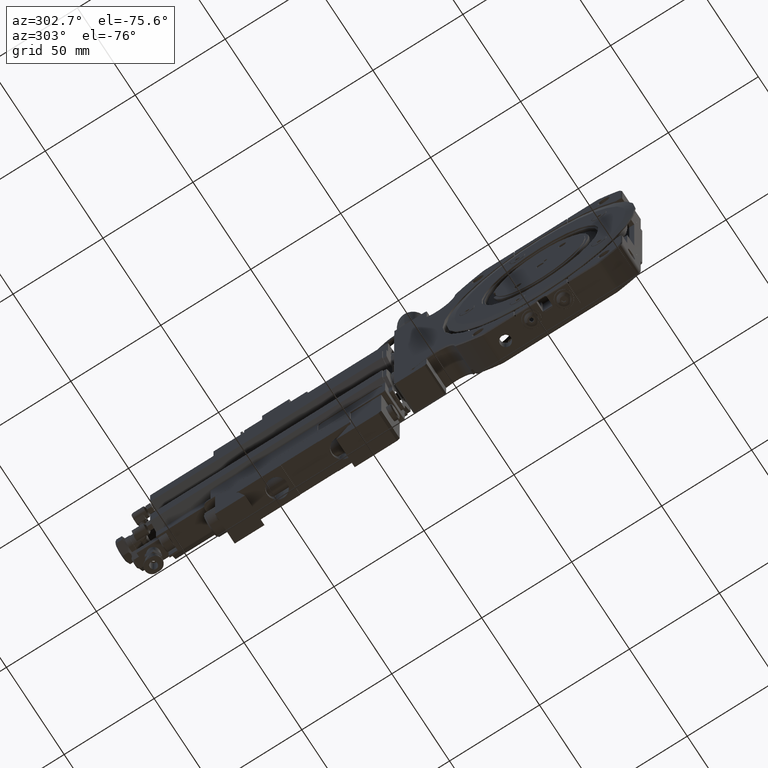
[diagram: clean part render]
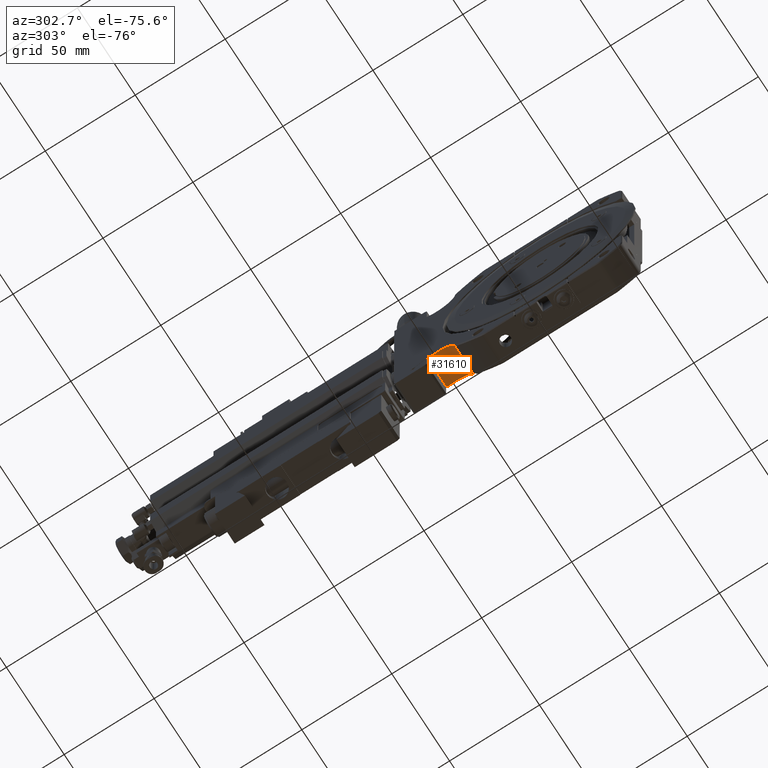
[diagram: same view with one face highlighted and labeled with its STEP entity id]
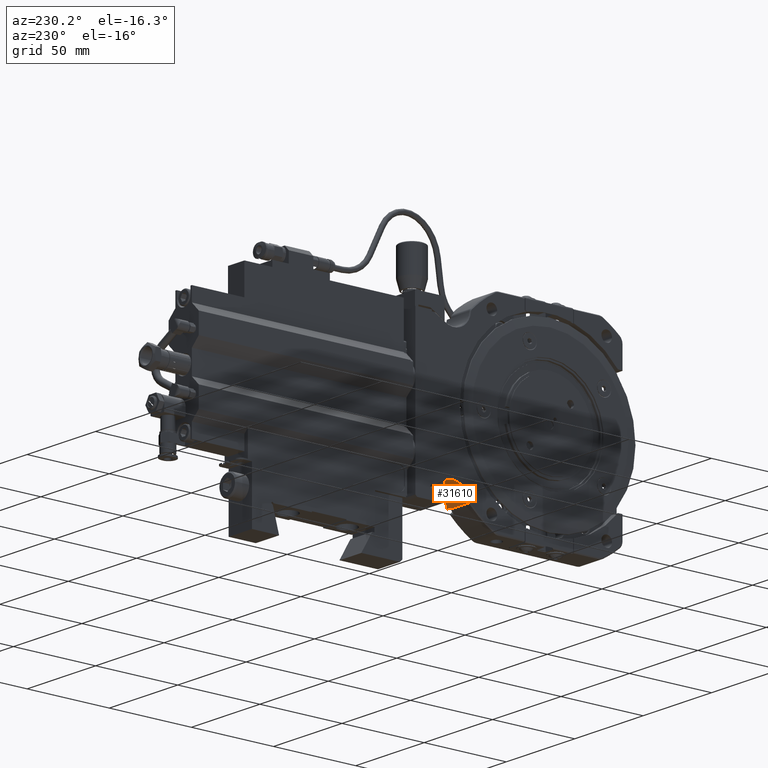
[diagram: same view with one face highlighted and labeled with its STEP entity id]
A machine part, auxiliary view. The second image highlights one B-rep face of the part: STEP entity #31610.
A second angle (auxiliary view) of the same face is appended — the face is thin or edge-on in the first view.
In plain terms, the highlighted cylindrical surface (edge-blend (fillet) strip) has radius 10 mm, axis along (1, 0, 0).
Its self-contained STEP definition (entity closure, byte-faithful):
#555 = DIRECTION ( 'NONE',  ( 1.000000000000000000, 2.800164661610394113E-17, 1.700029006457271446E-16 ) ) ;
#838 = LINE ( 'NONE', #35394, #5081 ) ;
#1915 = VECTOR ( 'NONE', #39461, 39.37007874015748143 ) ;
#3204 = DIRECTION ( 'NONE',  ( 1.734723475976806848E-16, -2.081668171172168119E-15, -1.000000000000000000 ) ) ;
#4196 = CARTESIAN_POINT ( 'NONE',  ( -0.3346456692913296616, 1.797274410967841352, -1.835139091002969902 ) ) ;
#5081 = VECTOR ( 'NONE', #555, 39.37007874015748143 ) ;
#5236 = CYLINDRICAL_SURFACE ( 'NONE', #10298, 0.3937007874015748810 ) ;
#6184 = EDGE_CURVE ( 'NONE', #17692, #34236, #838, .T. ) ;
#7087 = CIRCLE ( 'NONE', #14388, 0.3937007874015748810 ) ;
#7189 = CARTESIAN_POINT ( 'NONE',  ( -0.3149606299212481808, 2.189898843474779255, -1.864231443936779975 ) ) ;
#7499 = CIRCLE ( 'NONE', #39369, 0.3937007874015748810 ) ;
#9274 = CARTESIAN_POINT ( 'NONE',  ( -0.3346456692913296616, 1.799151036470527654, -1.816101813541477039 ) ) ;
#9470 = CARTESIAN_POINT ( 'NONE',  ( 0.2165354330708750552, 1.799151036470527210, -1.816101813541477039 ) ) ;
#10298 = AXIS2_PLACEMENT_3D ( 'NONE', #22627, #40016, #44547 ) ;
#11247 = EDGE_CURVE ( 'NONE', #54119, #35099, #43232, .T. ) ;
#14388 = AXIS2_PLACEMENT_3D ( 'NONE', #7189, #14893, #19696 ) ;
#14893 = DIRECTION ( 'NONE',  ( -1.000000000000000000, -2.800164661610394113E-17, -1.700029006457271446E-16 ) ) ;
#15046 = ORIENTED_EDGE ( 'NONE', *, *, #31855, .F. ) ;
#16163 = VERTEX_POINT ( 'NONE', #21328 ) ;
#17692 = VERTEX_POINT ( 'NONE', #40165 ) ;
#18840 = AXIS2_PLACEMENT_3D ( 'NONE', #32915, #45937, #29215 ) ;
#19416 = VECTOR ( 'NONE', #38992, 39.37007874015748143 ) ;
#19696 = DIRECTION ( 'NONE',  ( 1.734723475976806848E-16, -6.938893903907227392E-16, -1.000000000000000000 ) ) ;
#21328 = CARTESIAN_POINT ( 'NONE',  ( -0.3149606299212482363, 2.189898843474780588, -1.470530656535204761 ) ) ;
#22329 = ORIENTED_EDGE ( 'NONE', *, *, #11247, .T. ) ;
#22627 = CARTESIAN_POINT ( 'NONE',  ( -0.3346456692913296616, 2.189898843474779255, -1.864231443936779975 ) ) ;
#28160 = CARTESIAN_POINT ( 'NONE',  ( 0.3346456692913474251, 2.189898843474779255, -1.864231443936779975 ) ) ;
#28733 = CARTESIAN_POINT ( 'NONE',  ( 0.3346456692913474251, 1.799151036470527654, -1.816101813541477039 ) ) ;
#29215 = DIRECTION ( 'NONE',  ( 1.734723475976806848E-16, 4.857225732735058287E-15, -1.000000000000000000 ) ) ;
#29335 = DIRECTION ( 'NONE',  ( -1.000000000000000000, -2.800164661610394113E-17, -1.700029006457271446E-16 ) ) ;
#31601 = ORIENTED_EDGE ( 'NONE', *, *, #33298, .T. ) ;
#31610 = ADVANCED_FACE ( 'NONE', ( #31767 ), #5236, .F. ) ;
#31767 = FACE_OUTER_BOUND ( 'NONE', #47685, .T. ) ;
#31855 = EDGE_CURVE ( 'NONE', #39273, #34236, #7499, .T. ) ;
#31915 = CARTESIAN_POINT ( 'NONE',  ( -0.3149606299212481808, 1.797274410967841352, -1.835139091002969902 ) ) ;
#32066 = ORIENTED_EDGE ( 'NONE', *, *, #39045, .F. ) ;
#32542 = CIRCLE ( 'NONE', #18840, 0.3937007874015748810 ) ;
#32915 = CARTESIAN_POINT ( 'NONE',  ( 0.2165354330708750552, 2.189898843474779255, -1.864231443936779975 ) ) ;
#33025 = DIRECTION ( 'NONE',  ( 1.734723475976806848E-16, -2.081668171172168119E-15, -1.000000000000000000 ) ) ;
#33298 = EDGE_CURVE ( 'NONE', #35099, #16163, #50438, .T. ) ;
#34047 = VERTEX_POINT ( 'NONE', #9470 ) ;
#34236 = VERTEX_POINT ( 'NONE', #49514 ) ;
#34885 = CARTESIAN_POINT ( 'NONE',  ( -0.3149606299212481808, 2.189898843474779255, -1.864231443936779975 ) ) ;
#35099 = VERTEX_POINT ( 'NONE', #31915 ) ;
#35394 = CARTESIAN_POINT ( 'NONE',  ( -0.3346456692913296616, 2.386749237175568528, -1.523276560557080161 ) ) ;
#36927 = ORIENTED_EDGE ( 'NONE', *, *, #6184, .T. ) ;
#38678 = AXIS2_PLACEMENT_3D ( 'NONE', #34885, #39157, #3204 ) ;
#38992 = DIRECTION ( 'NONE',  ( -1.000000000000000000, -2.800164661610394113E-17, -1.700029006457271446E-16 ) ) ;
#39045 = EDGE_CURVE ( 'NONE', #34047, #39273, #47420, .T. ) ;
#39157 = DIRECTION ( 'NONE',  ( -1.000000000000000000, -2.800164661610394113E-17, -1.700029006457271446E-16 ) ) ;
#39273 = VERTEX_POINT ( 'NONE', #28733 ) ;
#39369 = AXIS2_PLACEMENT_3D ( 'NONE', #28160, #29335, #33025 ) ;
#39461 = DIRECTION ( 'NONE',  ( 1.000000000000000000, 2.800164661610394113E-17, 1.700029006457271446E-16 ) ) ;
#40016 = DIRECTION ( 'NONE',  ( 1.000000000000000000, 2.800164661610394113E-17, 1.700029006457271446E-16 ) ) ;
#40165 = CARTESIAN_POINT ( 'NONE',  ( -0.3149606299212481808, 2.386749237175568528, -1.523276560557080161 ) ) ;
#42863 = EDGE_CURVE ( 'NONE', #54119, #34047, #32542, .T. ) ;
#43232 = LINE ( 'NONE', #4196, #19416 ) ;
#44547 = DIRECTION ( 'NONE',  ( 1.734723475976806848E-16, -3.469446951953613794E-15, -1.000000000000000000 ) ) ;
#45937 = DIRECTION ( 'NONE',  ( -1.000000000000000000, -2.800164661610394113E-17, -1.700029006457271446E-16 ) ) ;
#45974 = ORIENTED_EDGE ( 'NONE', *, *, #42863, .F. ) ;
#47420 = LINE ( 'NONE', #9274, #1915 ) ;
#47685 = EDGE_LOOP ( 'NONE', ( #22329, #31601, #50892, #36927, #15046, #32066, #45974 ) ) ;
#49006 = CARTESIAN_POINT ( 'NONE',  ( 0.2165354330708750830, 1.797274410967841352, -1.835139091002969902 ) ) ;
#49514 = CARTESIAN_POINT ( 'NONE',  ( 0.3346456692913470921, 2.386749237175568528, -1.523276560557080161 ) ) ;
#50438 = CIRCLE ( 'NONE', #38678, 0.3937007874015748810 ) ;
#50892 = ORIENTED_EDGE ( 'NONE', *, *, #53386, .T. ) ;
#53386 = EDGE_CURVE ( 'NONE', #16163, #17692, #7087, .T. ) ;
#54119 = VERTEX_POINT ( 'NONE', #49006 ) ;